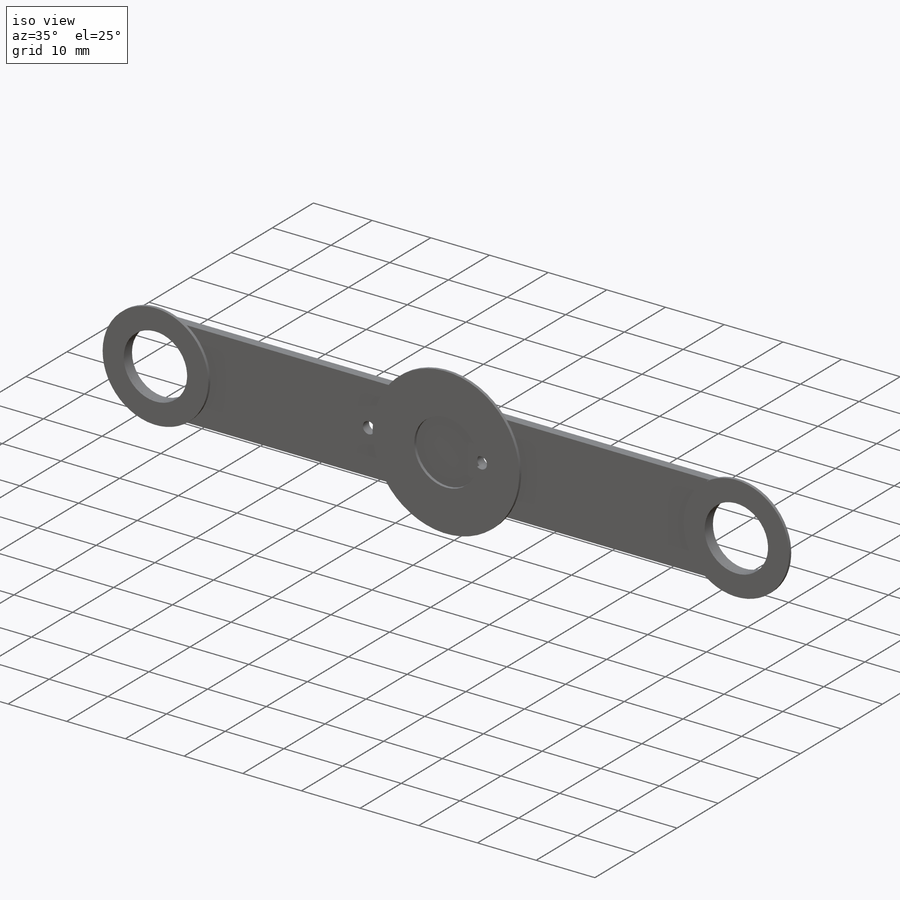
[diagram: iso view]
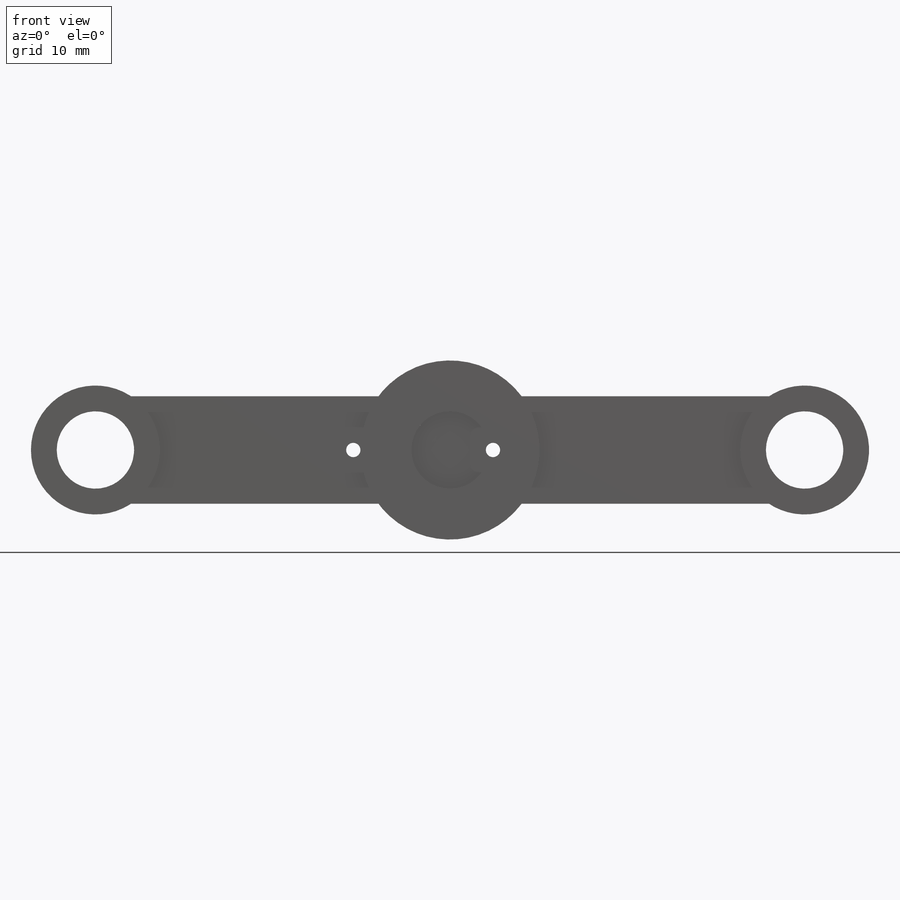
[diagram: front view]
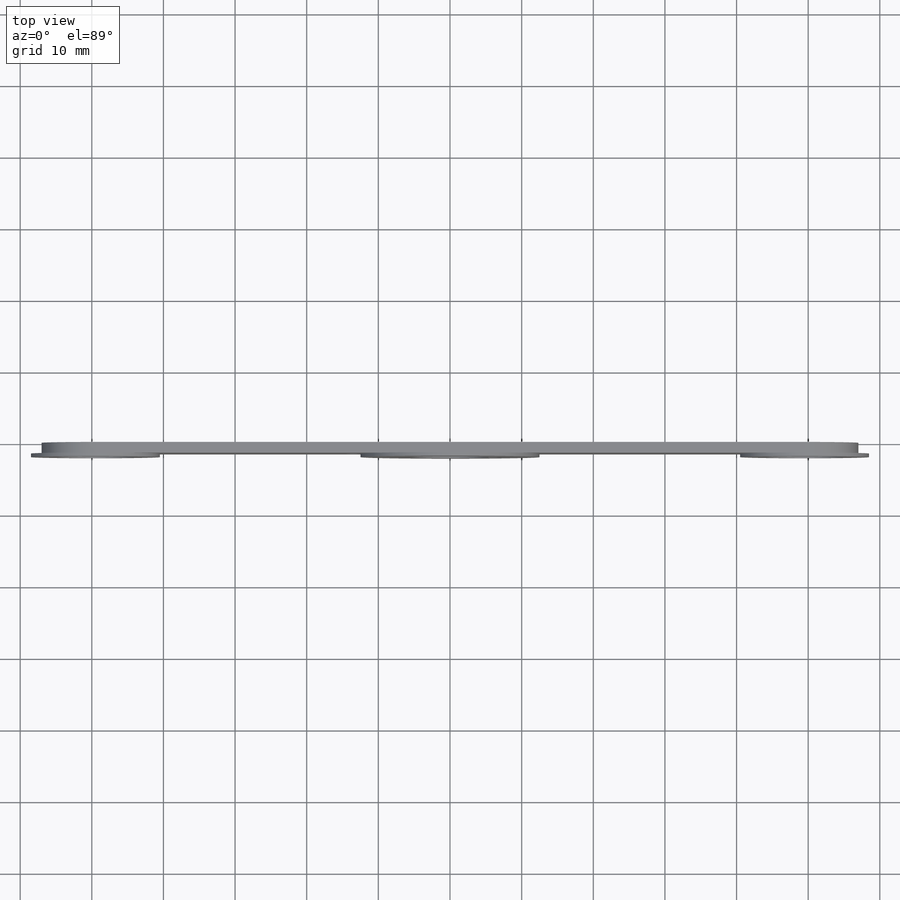
[diagram: top view]
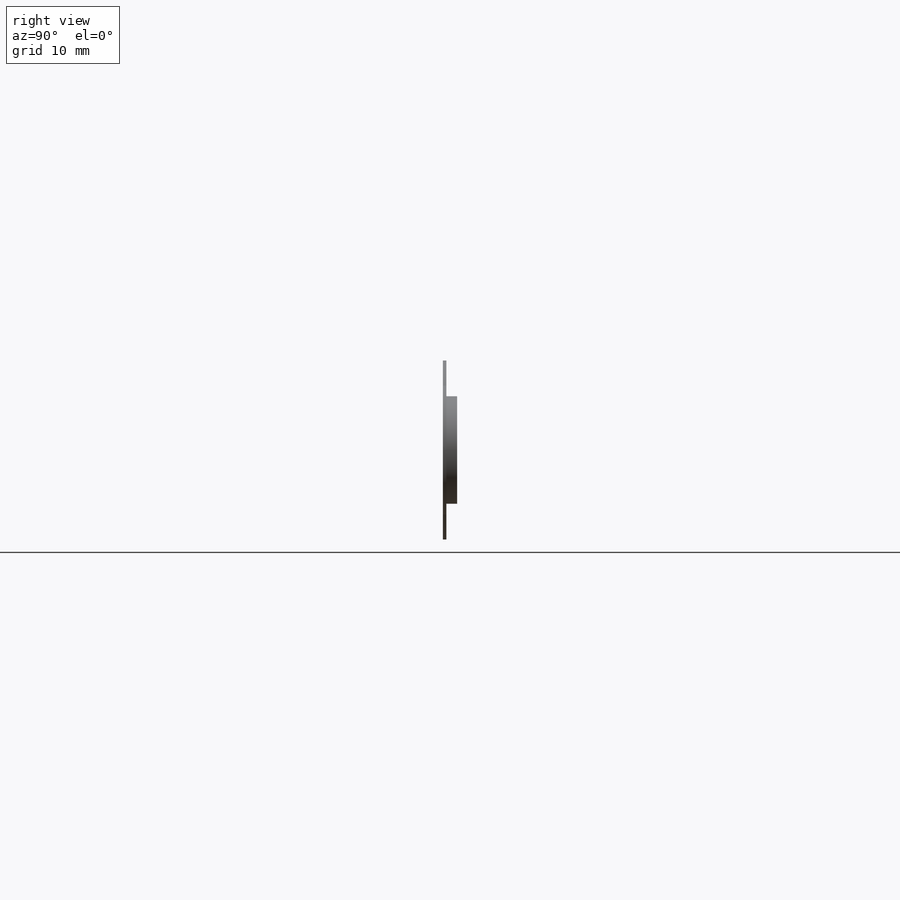
[diagram: right view]
SOLIDWORKS PART (.sldprt)
format: sldprt  version: not decoded by parser v0  size: 267,264 bytes
history: native  units: mm
features: sketch x5, extrude x4, material x1, cut_extrude x1 (+13 scaffold rows collapsed)
feature tree (24):
  scaffold x13  (default folders/planes/origin — collapsed)
  material  "Material <not specified>"
  sketch  "Sketch1"  dims[c1.D3=8.0mm c1.D4=8.0mm c1.D6=3.0mm c1.D8=8.0mm c1.D9=8.0mm c1.D10=3.0mm c2.D8=10.8mm c2.D3=7.5mm c3.D3=7.5mm c4.D3=7.5mm c4.D1=~17.813813mm c4.D2=~114.958471mm c5.D1=15.0mm c5.D2=57.0mm c5.D3=~3.123764mm c5.D4=21.0mm c5.D5=6.0mm c5.D7=21.0mm c5.D8=~66.936457mm c5.D9=~17.658534mm c6.D8=~26.078676mm c6.D9=21.0mm c6.D10=6.0mm c6.D11=21.0mm c6.D3=57.0mm c6.D4=56.0mm c6.D5=15.0mm c7.D4=21.5mm]
  extrude  "Boss-Extrude1"  Depth=1.5mm
  sketch  "Sketch2"  dims[D1=10.8mm]
  extrude  "Boss-Extrude2"  Depth=1.5mm
  sketch  "Sketch3"  dims[D1=25.0mm D2=18.0mm D3=18.0mm]
  extrude  "Boss-Extrude3"  Depth=0.5mm
  sketch  "Sketch4"
  extrude  "Boss-Extrude4"  Depth=1.5mm
  sketch  "Sketch5"  dims[c1.D1=~4.457302mm c1.D3=2.0mm c1.D4=2.0mm c2.D1=15.0mm c2.D2=19.5mm]
  cut_extrude  "Cut-Extrude1"  Depth=1.5mm
decode coverage: 9 of 10 modeling features carry decoded parameters
note: ~ marks probable driven/reference dimensions
note: suppression state not decoded; provenance and decode notes live in map.json
